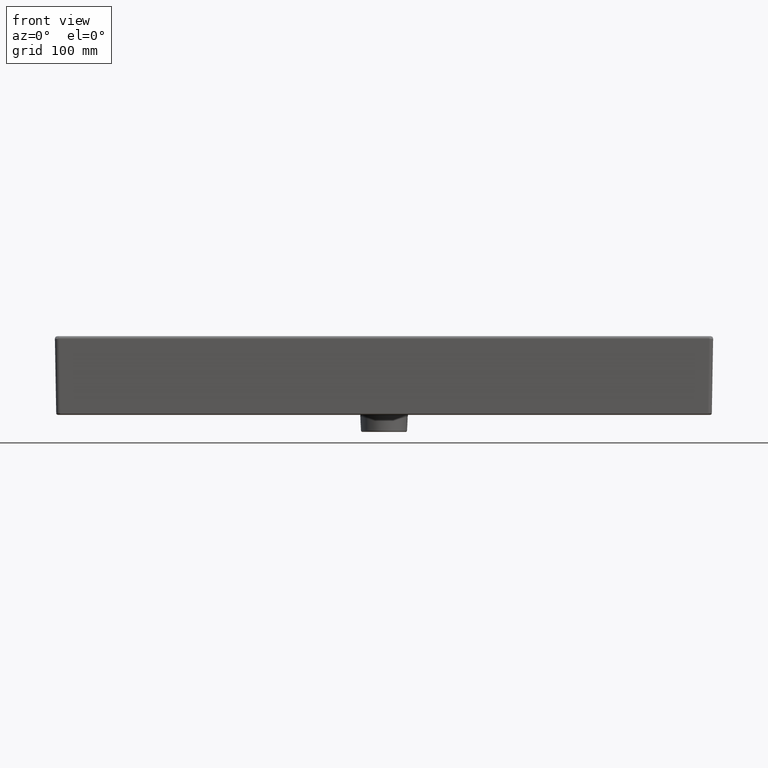
[diagram: clean part render]
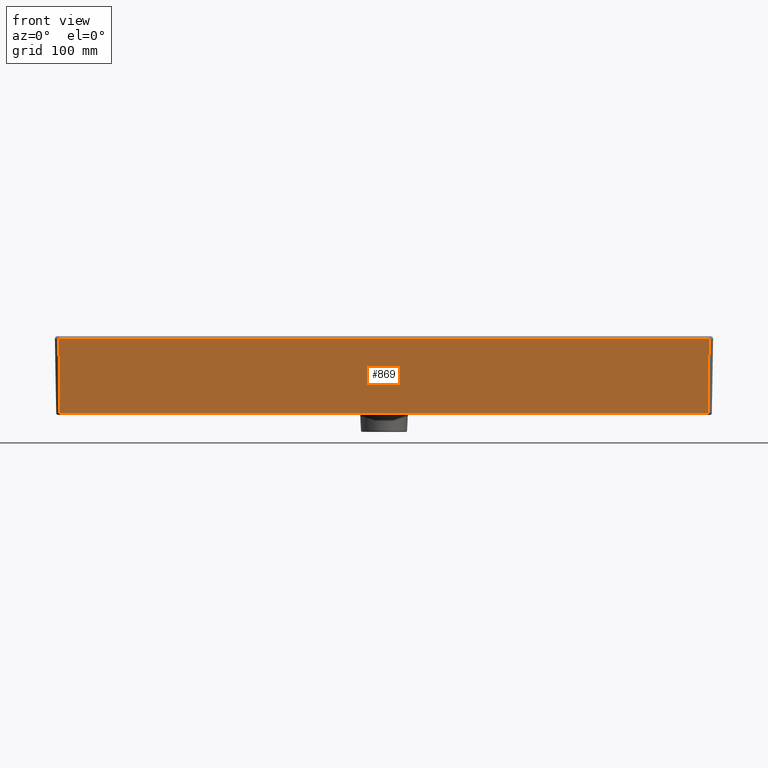
[diagram: same view with one face highlighted and labeled with its STEP entity id]
A machine part, front view. The second image highlights one B-rep face of the part: STEP entity #869.
In plain terms, the highlighted planar face has unit normal (0, 0.9994, 0.0349).
Its self-contained STEP definition (entity closure, byte-faithful):
#419=PLANE('',#5690);
#553=LINE('',#9106,#688);
#554=LINE('',#9109,#689);
#555=LINE('',#9111,#690);
#556=LINE('',#9113,#691);
#688=VECTOR('',#6251,1.);
#689=VECTOR('',#6252,1.);
#690=VECTOR('',#6253,1.);
#691=VECTOR('',#6254,1.);
#869=ADVANCED_FACE('',(#1231),#419,.F.);
#1231=FACE_OUTER_BOUND('',#1610,.T.);
#1610=EDGE_LOOP('',(#2477,#2478,#2479,#2480));
#2477=ORIENTED_EDGE('',*,*,#4640,.T.);
#2478=ORIENTED_EDGE('',*,*,#4641,.T.);
#2479=ORIENTED_EDGE('',*,*,#4642,.T.);
#2480=ORIENTED_EDGE('',*,*,#4643,.F.);
#4141=VERTEX_POINT('',#9107);
#4142=VERTEX_POINT('',#9108);
#4143=VERTEX_POINT('',#9110);
#4144=VERTEX_POINT('',#9112);
#4640=EDGE_CURVE('',#4141,#4142,#553,.T.);
#4641=EDGE_CURVE('',#4142,#4143,#554,.T.);
#4642=EDGE_CURVE('',#4143,#4144,#555,.T.);
#4643=EDGE_CURVE('',#4141,#4144,#556,.T.);
#5690=AXIS2_PLACEMENT_3D('',#9114,#6255,#6256);
#6251=DIRECTION('',(1.,0.,0.));
#6252=DIRECTION('',(0.0174417781380945,-0.0348941878126143,0.999238800303651));
#6253=DIRECTION('',(-1.,0.,0.));
#6254=DIRECTION('',(-0.0174417781380945,-0.0348941878126143,0.999238800303651));
#6255=DIRECTION('',(0.,0.999390827019096,0.034899496702501));
#6256=DIRECTION('',(0.,-0.034899496702501,0.999390827019096));
#9106=CARTESIAN_POINT('',(293.915465744981,-460.163080826718,-102.587248741756));
#9107=CARTESIAN_POINT('',(-493.957580474849,-460.163080826718,-102.587248741756));
#9108=CARTESIAN_POINT('',(493.957580474849,-460.163080826718,-102.587248741756));
#9109=CARTESIAN_POINT('',(495.719119449505,-463.68723251207,-1.66874847261373));
#9110=CARTESIAN_POINT('',(495.937816584731,-464.124760088112,10.86040201319));
#9111=CARTESIAN_POINT('',(296.010073536367,-464.124760088112,10.86040201319));
#9112=CARTESIAN_POINT('',(-495.937816584731,-464.124760088112,10.86040201319));
#9113=CARTESIAN_POINT('',(-495.719119449505,-463.68723251207,-1.66874847261373));
#9114=CARTESIAN_POINT('',(300.,-463.745506492822,0.));